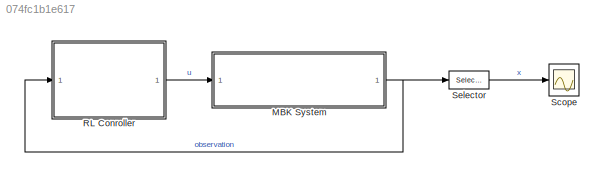
MODEL slx_074fc1b1e617
KIND model
CONFIG AbsTol = 1e-6
CONFIG EnableMultiTasking = off
CONFIG FixedStep = auto
CONFIG MaxStep = auto
CONFIG MinStep = auto
CONFIG RelTol = 1e-5
CONFIG SampleTimeConstraint = Unconstrained
CONFIG SolverName = ode45
CONFIG StartTime = 0.0
CONFIG StopTime = Tf
WORKSPACE source: mxarray member
WORKSPACE I = 0
WORKSPACE c = 0
WORKSPACE g = 9.81
WORKSPACE l = 1
WORKSPACE m = 1
WORKSPACE max_tau = 2
WORKSPACE theta0 = 0
WORKSPACE theta_dot0 = 0
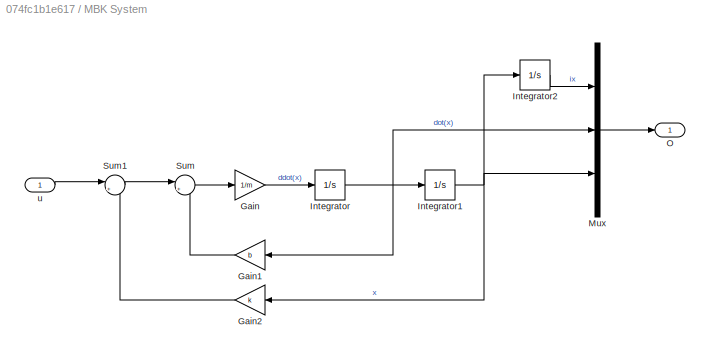
BLOCK [SubSystem] MBK System
BLOCK [Gain] MBK System/Gain
  Gain = 1/m
BLOCK [Gain] MBK System/Gain1
  Gain = b
  NameLocation = top
BLOCK [Gain] MBK System/Gain2
  Gain = k
  NameLocation = top
BLOCK [Integrator] MBK System/Integrator
BLOCK [Integrator] MBK System/Integrator1
  InitialCondition = x0
BLOCK [Integrator] MBK System/Integrator2
BLOCK [Mux] MBK System/Mux
  DisplayOption = bar
  Inputs = 3
BLOCK [Outport] MBK System/O
BLOCK [Sum] MBK System/Sum
  Inputs = |+-
BLOCK [Sum] MBK System/Sum1
  Inputs = |+-
BLOCK [Inport] MBK System/u
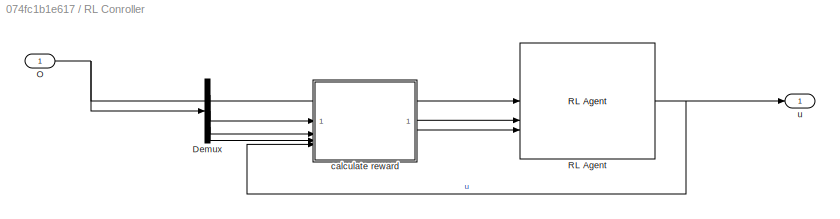
BLOCK [SubSystem] RL Conroller
BLOCK [Demux] RL Conroller/Demux
  Outputs = 3
BLOCK [Inport] RL Conroller/O
BLOCK [Reference] RL Conroller/RL Agent  REF=rllib/RL Agent
  NameLocation = top
  SourceBlock = rllib/RL Agent
  SourceType = RL Agent
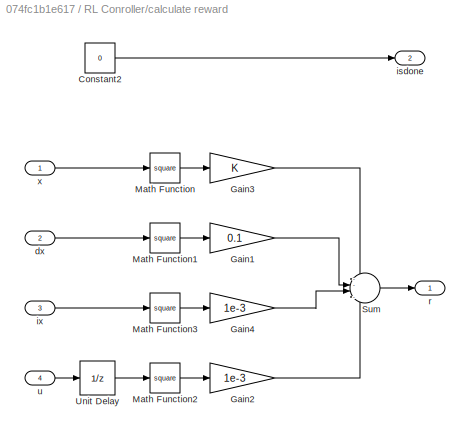
BLOCK [SubSystem] RL Conroller/calculate reward
BLOCK [Constant] RL Conroller/calculate reward/Constant2
  Value = 0
BLOCK [Gain] RL Conroller/calculate reward/Gain1
  Gain = 0.1
BLOCK [Gain] RL Conroller/calculate reward/Gain2
  Gain = 1e-3
BLOCK [Gain] RL Conroller/calculate reward/Gain3
BLOCK [Gain] RL Conroller/calculate reward/Gain4
  Gain = 1e-3
BLOCK [Math] RL Conroller/calculate reward/Math Function
  Operator = square
  SignedPower = on
BLOCK [Math] RL Conroller/calculate reward/Math Function1
  Operator = square
  SignedPower = on
BLOCK [Math] RL Conroller/calculate reward/Math Function2
  Operator = square
  SignedPower = on
BLOCK [Math] RL Conroller/calculate reward/Math Function3
  Operator = square
  SignedPower = on
BLOCK [Sum] RL Conroller/calculate reward/Sum
  Inputs = --|--
BLOCK [UnitDelay] RL Conroller/calculate reward/Unit Delay
  HasFrameUpgradeWarning = on
  SampleTime = -1
BLOCK [Inport] RL Conroller/calculate reward/dx
  Port = 2
BLOCK [Outport] RL Conroller/calculate reward/isdone
  Port = 2
  VectorParamsAs1DForOutWhenUnconnected = off
BLOCK [Inport] RL Conroller/calculate reward/ix
  Port = 3
BLOCK [Outport] RL Conroller/calculate reward/r
  VectorParamsAs1DForOutWhenUnconnected = off
BLOCK [Inport] RL Conroller/calculate reward/u
  Port = 4
BLOCK [Inport] RL Conroller/calculate reward/x
BLOCK [Outport] RL Conroller/u
BLOCK [Scope] Scope
  Floating = off
  NumInputPorts = 1
  ScopeSpecificationString = Simulink.scopes.TimeScopeBlockCfg('CurrentConfiguration', extmgr.ConfigurationSet(extmgr.Configuration('Core','General UI',true),extmgr.Configuration('Core','Source UI',true),extmgr.Configuration('Sources','WiredSimulink',true),extmgr.Configuration('Visuals','Time Domain',true,'SerializedDisplays',{struct('MinYLimReal','-4.09579','MaxYLimReal','6.01064','YLabelReal','','MinYLimMag','0.00000','MaxY...<+1410ch>
BLOCK [Selector] Selector
  IndexOptions = Index vector (dialog)
  Indices = [3]
  InputPortWidth = 3
  OutputSizes = 1
LINE MBK System/Gain1:1 -> MBK System/Sum:2
LINE MBK System/Gain2:1 -> MBK System/Sum1:2
LINE MBK System/Gain:1 -> MBK System/Integrator:1
NET MBK System/Integrator1:1 -> MBK System/Gain2:1, MBK System/Integrator2:1, MBK System/Mux:3
LINE MBK System/Integrator2:1 -> MBK System/Mux:1
NET MBK System/Integrator:1 -> MBK System/Gain1:1, MBK System/Integrator1:1, MBK System/Mux:2
LINE MBK System/Mux:1 -> MBK System/O:1
LINE MBK System/Sum1:1 -> MBK System/Sum:1
LINE MBK System/Sum:1 -> MBK System/Gain:1
LINE MBK System/u:1 -> MBK System/Sum1:1
NET MBK System:1 -> RL Conroller:1, Selector:1
LINE RL Conroller/Demux:1 -> RL Conroller/calculate reward:1
LINE RL Conroller/Demux:2 -> RL Conroller/calculate reward:2
LINE RL Conroller/Demux:3 -> RL Conroller/calculate reward:3
NET RL Conroller/O:1 -> RL Conroller/Demux:1, RL Conroller/RL Agent:1
NET RL Conroller/RL Agent:1 -> RL Conroller/calculate reward:4, RL Conroller/u:1
LINE RL Conroller/calculate reward/Constant2:1 -> RL Conroller/calculate reward/isdone:1
LINE RL Conroller/calculate reward/Gain1:1 -> RL Conroller/calculate reward/Sum:2
LINE RL Conroller/calculate reward/Gain2:1 -> RL Conroller/calculate reward/Sum:4
LINE RL Conroller/calculate reward/Gain3:1 -> RL Conroller/calculate reward/Sum:1
LINE RL Conroller/calculate reward/Gain4:1 -> RL Conroller/calculate reward/Sum:3
LINE RL Conroller/calculate reward/Math Function1:1 -> RL Conroller/calculate reward/Gain1:1
LINE RL Conroller/calculate reward/Math Function2:1 -> RL Conroller/calculate reward/Gain2:1
LINE RL Conroller/calculate reward/Math Function3:1 -> RL Conroller/calculate reward/Gain4:1
LINE RL Conroller/calculate reward/Math Function:1 -> RL Conroller/calculate reward/Gain3:1
LINE RL Conroller/calculate reward/Sum:1 -> RL Conroller/calculate reward/r:1
LINE RL Conroller/calculate reward/Unit Delay:1 -> RL Conroller/calculate reward/Math Function2:1
LINE RL Conroller/calculate reward/dx:1 -> RL Conroller/calculate reward/Math Function1:1
LINE RL Conroller/calculate reward/ix:1 -> RL Conroller/calculate reward/Math Function3:1
LINE RL Conroller/calculate reward/u:1 -> RL Conroller/calculate reward/Unit Delay:1
LINE RL Conroller/calculate reward/x:1 -> RL Conroller/calculate reward/Math Function:1
LINE RL Conroller/calculate reward:1 -> RL Conroller/RL Agent:2
LINE RL Conroller/calculate reward:2 -> RL Conroller/RL Agent:3
LINE RL Conroller:1 -> MBK System:1
LINE Selector:1 -> Scope:1
note: NET lines group one-source signal fan-out (src -> all destinations, sorted); 1:1 wires keep LINE
